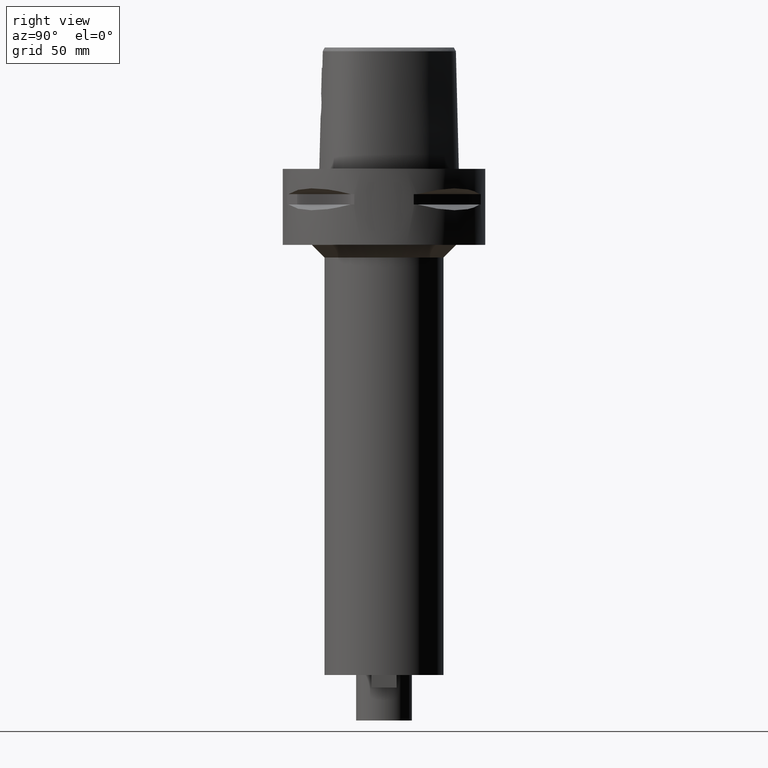
[diagram: clean part render]
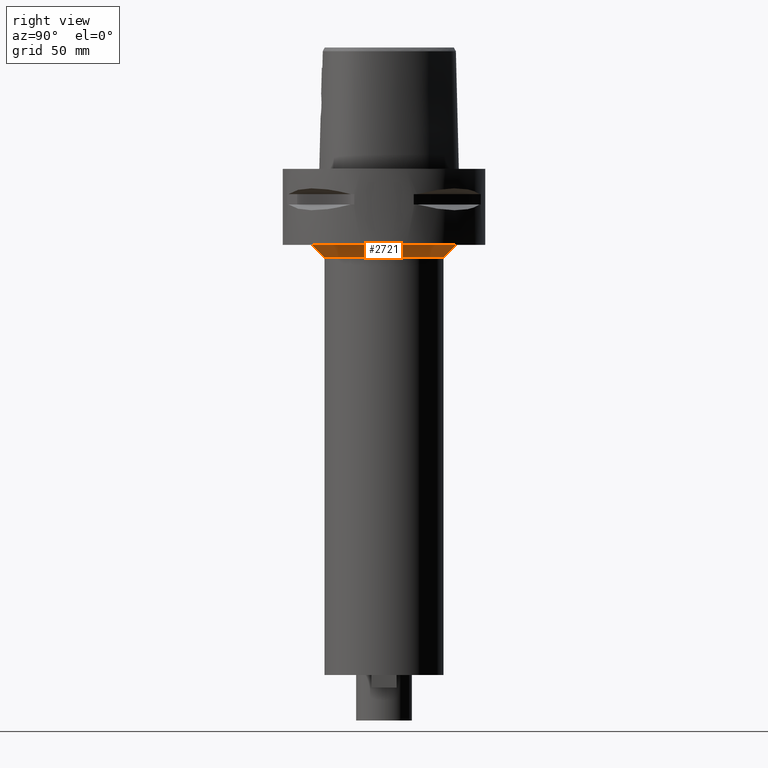
[diagram: same view with one face highlighted and labeled with its STEP entity id]
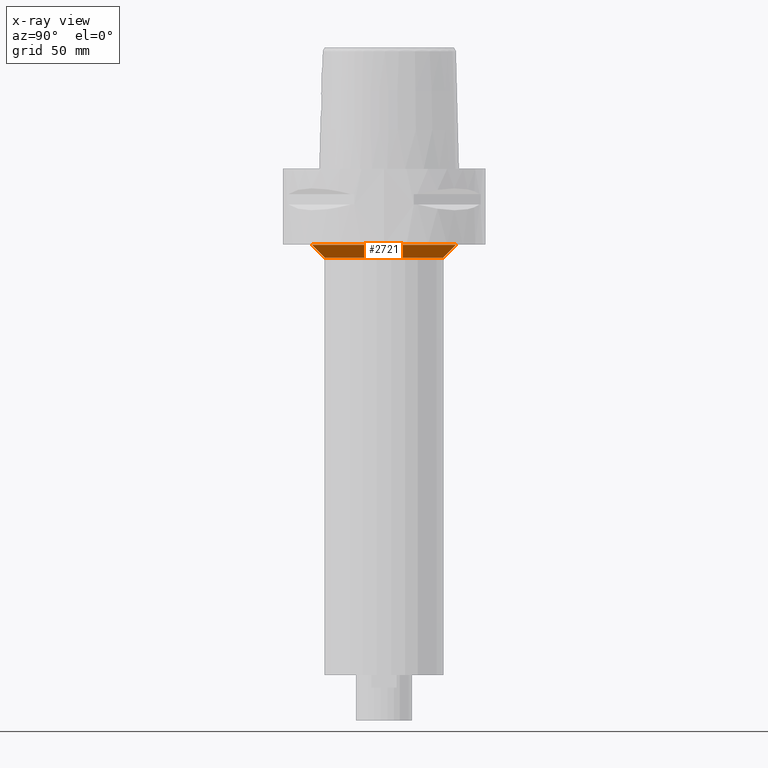
[diagram: x-ray of the same camera — body ghosted, the highlighted face saturated]
A machine part, right view. The second image highlights one B-rep face of the part: STEP entity #2721.
The next image is the same camera in x-ray: the body ghosted, the highlighted face saturated — about 0% of this face is hidden behind the body in this view.
In plain terms, the highlighted conical surface has half-angle 45 deg.
Its self-contained STEP definition (entity closure, byte-faithful):
#501=CARTESIAN_POINT('',(0.E0,0.E0,-3.E1));
#502=DIRECTION('',(0.E0,0.E0,-1.E0));
#503=DIRECTION('',(0.E0,1.E0,0.E0));
#504=AXIS2_PLACEMENT_3D('',#501,#502,#503);
#509=DIRECTION('',(0.E0,7.071067811865E-1,-7.071067811865E-1));
#510=VECTOR('',#509,7.071067811865E0);
#511=CARTESIAN_POINT('',(0.E0,-2.85E1,-3.E1));
#512=LINE('',#511,#510);
#524=DIRECTION('',(0.E0,-7.071067811865E-1,-7.071067811865E-1));
#525=VECTOR('',#524,7.071067811865E0);
#526=CARTESIAN_POINT('',(0.E0,2.85E1,-3.E1));
#527=LINE('',#526,#525);
#531=CARTESIAN_POINT('',(0.E0,0.E0,-3.5E1));
#532=DIRECTION('',(0.E0,0.E0,-1.E0));
#533=DIRECTION('',(0.E0,1.E0,0.E0));
#534=AXIS2_PLACEMENT_3D('',#531,#532,#533);
#1708=CARTESIAN_POINT('',(0.E0,-2.85E1,-3.E1));
#1709=CARTESIAN_POINT('',(0.E0,2.85E1,-3.E1));
#1710=VERTEX_POINT('',#1708);
#1711=VERTEX_POINT('',#1709);
#1712=CARTESIAN_POINT('',(0.E0,2.35E1,-3.5E1));
#1713=VERTEX_POINT('',#1712);
#1714=CARTESIAN_POINT('',(0.E0,-2.35E1,-3.5E1));
#1715=VERTEX_POINT('',#1714);
#2709=CARTESIAN_POINT('',(0.E0,0.E0,-3.25E1));
#2710=DIRECTION('',(0.E0,0.E0,1.E0));
#2711=DIRECTION('',(0.E0,1.E0,0.E0));
#2712=AXIS2_PLACEMENT_3D('',#2709,#2710,#2711);
#2713=CONICAL_SURFACE('',#2712,2.6E1,4.5E1);
#2714=ORIENTED_EDGE('',*,*,#2699,.T.);
#2716=ORIENTED_EDGE('',*,*,#2715,.T.);
#2717=ORIENTED_EDGE('',*,*,#2702,.F.);
#2718=ORIENTED_EDGE('',*,*,#2689,.F.);
#2719=EDGE_LOOP('',(#2714,#2716,#2717,#2718));
#2720=FACE_OUTER_BOUND('',#2719,.F.);
#505=CIRCLE('',#504,2.85E1);
#535=CIRCLE('',#534,2.35E1);
#2689=EDGE_CURVE('',#1711,#1710,#505,.T.);
#2699=EDGE_CURVE('',#1711,#1713,#527,.T.);
#2702=EDGE_CURVE('',#1710,#1715,#512,.T.);
#2715=EDGE_CURVE('',#1713,#1715,#535,.T.);
#2721=ADVANCED_FACE('',(#2720),#2713,.T.);